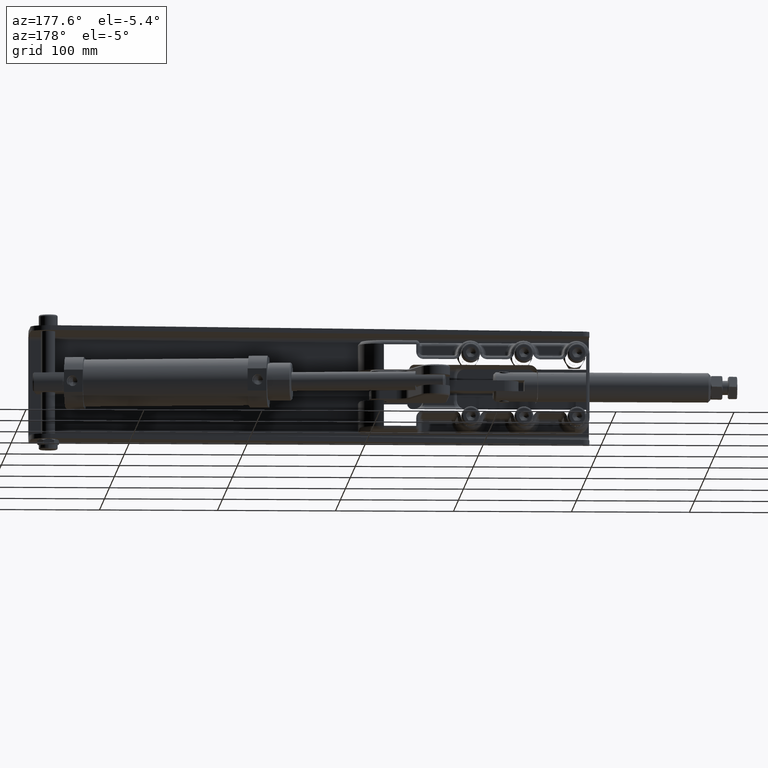
[diagram: clean part render]
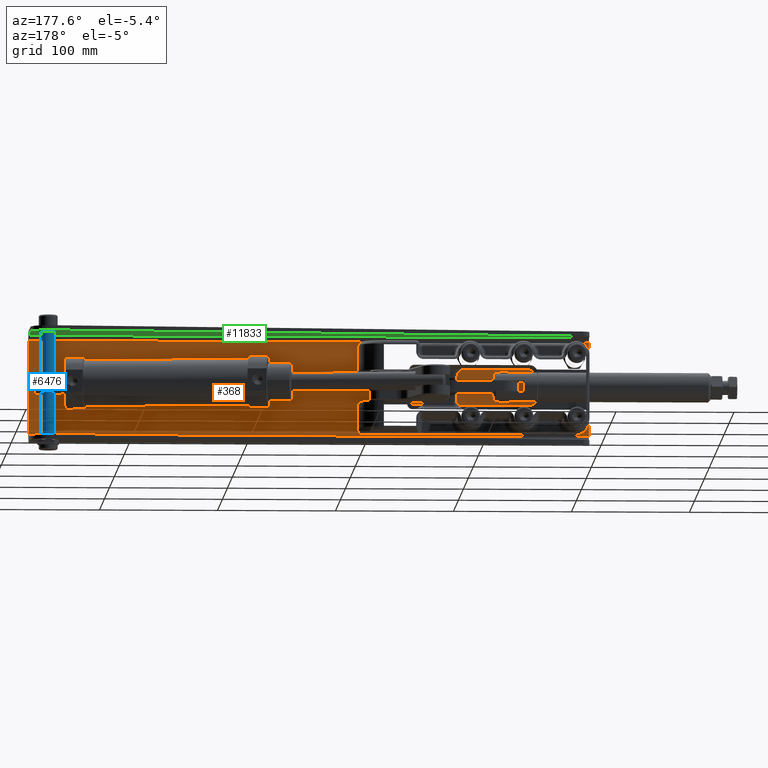
[diagram: same view with three faces highlighted in distinct colors, each labeled with its STEP entity id]
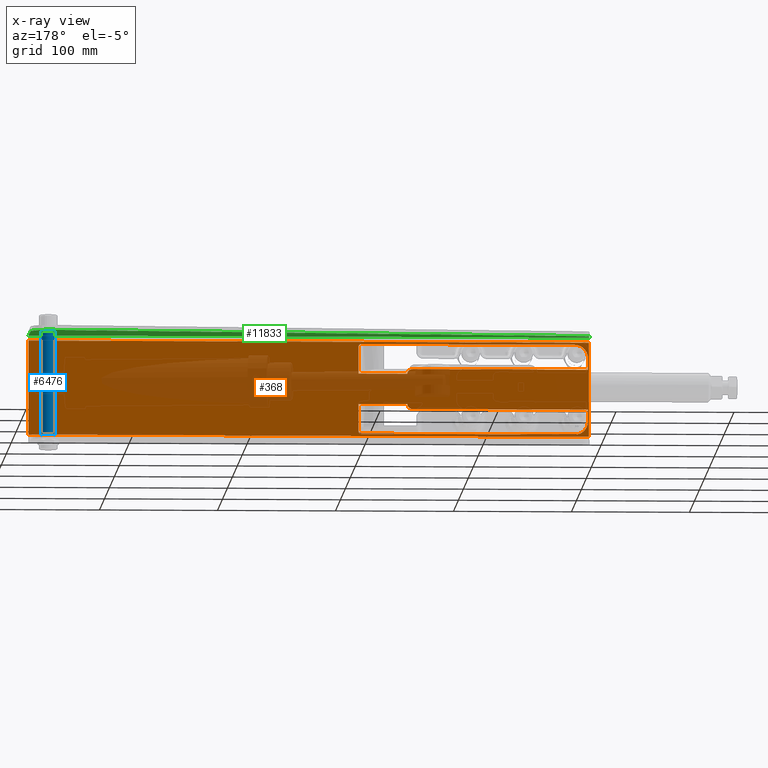
[diagram: x-ray of the same camera — body ghosted, the three highlighted faces saturated]
A machine part, auxiliary view with three faces highlighted in distinct colors.
The next image is the same camera in x-ray (body ghosted, the three faces saturated) — at least one of them is partly hidden behind the body in this view.
Their STEP definitions:

[orange] entity #368 — the highlighted planar face has unit normal (0, 1, 0).
#305 = VECTOR ( 'NONE', #17551, 1000.000000000000000 ) ;
#368 = ADVANCED_FACE ( 'NONE', ( #49665, #37427, #5117 ), #57052, .T. ) ;
#819 = DIRECTION ( 'NONE',  ( -1.000000000000000000, 0.0000000000000000000, 0.0000000000000000000 ) ) ;
#988 = CARTESIAN_POINT ( 'NONE',  ( 97.15648183554718300, 1.000000000052972100, -13.00000000000000500 ) ) ;
#1127 = CARTESIAN_POINT ( 'NONE',  ( -97.15648183554718300, 1.000000000000000000, -17.00000000000000000 ) ) ;
#1220 = VERTEX_POINT ( 'NONE', #53520 ) ;
#1316 = LINE ( 'NONE', #44049, #36501 ) ;
#1428 = EDGE_CURVE ( 'NONE', #33184, #7530, #1316, .T. ) ;
#1732 = VECTOR ( 'NONE', #26704, 1000.000000000000000 ) ;
#1772 = VERTEX_POINT ( 'NONE', #9234 ) ;
#2210 = DIRECTION ( 'NONE',  ( 0.0000000000000000000, 1.000000000000000000, 0.0000000000000000000 ) ) ;
#2460 = VERTEX_POINT ( 'NONE', #35881 ) ;
#2669 = ORIENTED_EDGE ( 'NONE', *, *, #58497, .F. ) ;
#2800 = VECTOR ( 'NONE', #3045, 1000.000000000000000 ) ;
#2897 = CARTESIAN_POINT ( 'NONE',  ( 95.50911380968743500, 1.000000000000005600, -38.09714708386768900 ) ) ;
#3045 = DIRECTION ( 'NONE',  ( -0.0000000000000000000, -0.0000000000000000000, -1.000000000000000000 ) ) ;
#3447 = LINE ( 'NONE', #20933, #38658 ) ;
#4636 = CARTESIAN_POINT ( 'NONE',  ( 96.92988952901025400, 1.000000000000011100, 36.91200907036959900 ) ) ;
#4655 = CARTESIAN_POINT ( 'NONE',  ( -97.15648183549980400, 1.000000000000000000, 26.99999999697401900 ) ) ;
#4978 = CARTESIAN_POINT ( 'NONE',  ( 0.0000000000000000000, 1.000000000000000000, 17.00000000442779000 ) ) ;
#5007 = EDGE_CURVE ( 'NONE', #58495, #24732, #59117, .T. ) ;
#5078 = VERTEX_POINT ( 'NONE', #21565 ) ;
#5117 = FACE_BOUND ( 'NONE', #47254, .T. ) ;
#5470 = DIRECTION ( 'NONE',  ( -1.000000000000000000, -0.0000000000000000000, -0.0000000000000000000 ) ) ;
#6969 = LINE ( 'NONE', #46829, #42150 ) ;
#7297 = DIRECTION ( 'NONE',  ( 0.0000000000000000000, 0.0000000000000000000, 1.000000000000000000 ) ) ;
#7510 = CARTESIAN_POINT ( 'NONE',  ( 94.92041385941081400, 0.9999999999995815600, -38.15648183549979700 ) ) ;
#7530 = VERTEX_POINT ( 'NONE', #988 ) ;
#8219 = VERTEX_POINT ( 'NONE', #21411 ) ;
#9216 = CARTESIAN_POINT ( 'NONE',  ( 97.08488855584097600, 0.9999999999999947800, 36.50045569711313200 ) ) ;
#9234 = CARTESIAN_POINT ( 'NONE',  ( 97.15648183549980400, 1.000000000000000000, 13.00000000000000200 ) ) ;
#10176 = LINE ( 'NONE', #49391, #56226 ) ;
#11261 = ORIENTED_EDGE ( 'NONE', *, *, #22274, .F. ) ;
#11388 = VERTEX_POINT ( 'NONE', #28928 ) ;
#11451 = EDGE_CURVE ( 'NONE', #56258, #54721, #33849, .T. ) ;
#11861 = ORIENTED_EDGE ( 'NONE', *, *, #35633, .F. ) ;
#11885 = CARTESIAN_POINT ( 'NONE',  ( 97.04233286314365600, 1.000000000000001100, -36.64077336740563600 ) ) ;
#12089 = CARTESIAN_POINT ( 'NONE',  ( 97.15648183549980400, 1.000000000000006700, 35.92041385479770800 ) ) ;
#12202 = DIRECTION ( 'NONE',  ( 0.0000000000000000000, 0.0000000000000000000, -1.000000000000000000 ) ) ;
#12208 = EDGE_CURVE ( 'NONE', #39655, #1220, #44564, .T. ) ;
#12588 = CARTESIAN_POINT ( 'NONE',  ( 97.15648183559454800, 1.000000000105943900, -24.46020692900000200 ) ) ;
#13136 = CARTESIAN_POINT ( 'NONE',  ( 377.0000000000000000, 1.000000000000000000, 0.0000000000000000000 ) ) ;
#13388 = CARTESIAN_POINT ( 'NONE',  ( 95.06801083798605100, 0.9999999999999983300, 38.15648183225170000 ) ) ;
#13802 = CARTESIAN_POINT ( 'NONE',  ( 97.15648183565709000, 0.9999999999999995600, 36.06801079026740100 ) ) ;
#14151 = CARTESIAN_POINT ( 'NONE',  ( 97.15648183549980400, 1.000000000000000000, -35.92041386193097500 ) ) ;
#14579 = LINE ( 'NONE', #4978, #33302 ) ;
#14612 = ORIENTED_EDGE ( 'NONE', *, *, #19471, .F. ) ;
#14688 =( BOUNDED_CURVE ( )  B_SPLINE_CURVE ( 3, ( #4655, #32175, #18482, #50624 ),
 .UNSPECIFIED., .F., .F. ) 
 B_SPLINE_CURVE_WITH_KNOTS ( ( 4, 4 ),
 ( 7.419066370004565100E-013, 0.01742820191794432900 ),
 .UNSPECIFIED. ) 
 CURVE ( )  GEOMETRIC_REPRESENTATION_ITEM ( )  RATIONAL_B_SPLINE_CURVE ( ( 0.9999999999999996700, 0.8047378541243647200, 0.8047378541243647200, 0.9999999999999996700 ) ) 
 REPRESENTATION_ITEM ( '' )  );
#14912 = CARTESIAN_POINT ( 'NONE',  ( 55.97213595499979300, 1.000000000000000900, -13.00000000000000200 ) ) ;
#15231 = VECTOR ( 'NONE', #819, 1000.000000000000000 ) ;
#15436 = CARTESIAN_POINT ( 'NONE',  ( -98.00000000000000000, 1.000000000000031300, -40.00000000000003600 ) ) ;
#16345 = CARTESIAN_POINT ( 'NONE',  ( 97.14200290983234300, 1.000000000000007500, -36.21323035705479000 ) ) ;
#16520 = DIRECTION ( 'NONE',  ( 1.000000000000000000, 0.0000000000000000000, 0.0000000000000000000 ) ) ;
#16530 = CARTESIAN_POINT ( 'NONE',  ( 96.86161125220306200, 1.000000000000002900, -37.03982447843932100 ) ) ;
#17551 = DIRECTION ( 'NONE',  ( -1.000000000000000000, 0.0000000000000000000, 0.0000000000000000000 ) ) ;
#17580 = CARTESIAN_POINT ( 'NONE',  ( 94.92041385941081400, 0.9999999999995815600, -38.15648183549979700 ) ) ;
#17693 = ORIENTED_EDGE ( 'NONE', *, *, #5007, .F. ) ;
#18482 = CARTESIAN_POINT ( 'NONE',  ( -92.53531575099997000, 1.000000000000005300, 38.15648183500000100 ) ) ;
#18747 = CARTESIAN_POINT ( 'NONE',  ( -86.00000000000000000, 1.000000000000000000, -38.15648183499999400 ) ) ;
#19076 = CARTESIAN_POINT ( 'NONE',  ( 55.97213595499979300, 1.000000000000000200, 13.00000000000000200 ) ) ;
#19141 = AXIS2_PLACEMENT_3D ( 'NONE', #29740, #2210, #34344 ) ;
#19471 = EDGE_CURVE ( 'NONE', #1220, #11388, #14688, .T. ) ;
#19635 = LINE ( 'NONE', #13136, #53357 ) ;
#20312 = CARTESIAN_POINT ( 'NONE',  ( 51.50000000000000700, 1.000000000000000000, 12.50000000000000000 ) ) ;
#20933 = CARTESIAN_POINT ( 'NONE',  ( 77.07211974000000500, 1.000000000000000000, 13.00000000000000200 ) ) ;
#20981 = EDGE_CURVE ( 'NONE', #57228, #54721, #49690, .T. ) ;
#21186 = CARTESIAN_POINT ( 'NONE',  ( 96.60517291495412500, 1.000000000000008400, -37.39785854648362600 ) ) ;
#21368 = VERTEX_POINT ( 'NONE', #33288 ) ;
#21411 = CARTESIAN_POINT ( 'NONE',  ( -98.00000000000000000, 0.9999999999999756900, 39.99999999999981500 ) ) ;
#21565 = CARTESIAN_POINT ( 'NONE',  ( 377.0000000000000000, 1.000000000000031300, -40.00000000000003600 ) ) ;
#21782 = ORIENTED_EDGE ( 'NONE', *, *, #31268, .T. ) ;
#22036 = DIRECTION ( 'NONE',  ( 0.0000000000000000000, -1.000000000000000000, -0.0000000000000000000 ) ) ;
#22138 = VECTOR ( 'NONE', #52344, 1000.000000000000000 ) ;
#22274 = EDGE_CURVE ( 'NONE', #30712, #1772, #51661, .T. ) ;
#22692 = CARTESIAN_POINT ( 'NONE',  ( 95.21362989936697800, 1.000000000000000700, 38.14200992127401000 ) ) ;
#23040 = ORIENTED_EDGE ( 'NONE', *, *, #48404, .T. ) ;
#23953 = VERTEX_POINT ( 'NONE', #19076 ) ;
#24732 = VERTEX_POINT ( 'NONE', #17580 ) ;
#24757 = CARTESIAN_POINT ( 'NONE',  ( -97.15648183549980400, 0.9999999999999688000, -27.00000000000000400 ) ) ;
#24795 = LINE ( 'NONE', #45083, #305 ) ;
#24892 = DIRECTION ( 'NONE',  ( 1.541976423090494800E-015, 0.0000000000000000000, 1.000000000000000000 ) ) ;
#24895 = EDGE_LOOP ( 'NONE', ( #41441, #14612, #33917, #2669, #47945, #11861, #11261, #32503 ) ) ;
#25102 = CARTESIAN_POINT ( 'NONE',  ( -92.53531575099994200, 0.9999999999999950000, -38.15648183499999400 ) ) ;
#25346 = EDGE_CURVE ( 'NONE', #5078, #52100, #51925, .T. ) ;
#25540 = DIRECTION ( 'NONE',  ( -1.000000000000000000, -0.0000000000000000000, -0.0000000000000000000 ) ) ;
#25791 = CARTESIAN_POINT ( 'NONE',  ( 96.28660206518843300, 1.000000000000097000, -37.69667904823703000 ) ) ;
#26704 = DIRECTION ( 'NONE',  ( 0.0000000000000000000, 0.0000000000000000000, 1.000000000000000000 ) ) ;
#27316 = CARTESIAN_POINT ( 'NONE',  ( 95.64303468280338900, 0.9999999999999883400, 38.04150713624743900 ) ) ;
#27361 = EDGE_CURVE ( 'NONE', #52100, #8219, #58833, .T. ) ;
#28035 = CARTESIAN_POINT ( 'NONE',  ( -97.15648183524989200, 1.000000000000000000, 17.00000000000000000 ) ) ;
#28286 = VERTEX_POINT ( 'NONE', #42014 ) ;
#28445 = EDGE_LOOP ( 'NONE', ( #45423, #50820, #38679, #34812 ) ) ;
#28928 = CARTESIAN_POINT ( 'NONE',  ( -86.00000000000000000, 1.000000000000000000, 38.15648183549979700 ) ) ;
#29397 = EDGE_CURVE ( 'NONE', #21368, #8219, #24795, .T. ) ;
#29655 = ORIENTED_EDGE ( 'NONE', *, *, #20981, .T. ) ;
#29732 = CARTESIAN_POINT ( 'NONE',  ( -97.15648183549980400, 0.9999999999999688000, -27.00000000000000400 ) ) ;
#29740 = CARTESIAN_POINT ( 'NONE',  ( -98.00000000000000000, 1.000000000000000000, -39.92500000000000400 ) ) ;
#30222 = CARTESIAN_POINT ( 'NONE',  ( 97.15648183473898300, 1.000000000000002000, -36.06805501278262900 ) ) ;
#30421 = CARTESIAN_POINT ( 'NONE',  ( 95.91236799640034900, 1.000000000000005600, -37.92969501779874300 ) ) ;
#30712 = VERTEX_POINT ( 'NONE', #12089 ) ;
#31268 = EDGE_CURVE ( 'NONE', #2460, #57228, #10176, .T. ) ;
#31663 = DIRECTION ( 'NONE',  ( -0.0000000000000000000, -0.0000000000000000000, -1.000000000000000000 ) ) ;
#31932 = CARTESIAN_POINT ( 'NONE',  ( 96.29584852246127000, 1.000000000000004700, 37.70727364196978500 ) ) ;
#32155 = CARTESIAN_POINT ( 'NONE',  ( 96.86131508610452600, 1.000000000000078400, 37.04043774668845400 ) ) ;
#32175 = CARTESIAN_POINT ( 'NONE',  ( -97.15648183499998000, 1.000000000000005300, 33.53531575100000600 ) ) ;
#32365 = VECTOR ( 'NONE', #7297, 1000.000000000000000 ) ;
#32503 = ORIENTED_EDGE ( 'NONE', *, *, #55069, .F. ) ;
#32804 = AXIS2_PLACEMENT_3D ( 'NONE', #20312, #52417, #24892 ) ;
#33184 = VERTEX_POINT ( 'NONE', #14912 ) ;
#33288 = CARTESIAN_POINT ( 'NONE',  ( 377.0000000000000000, 0.9999999999999756900, 39.99999999999981500 ) ) ;
#33302 = VECTOR ( 'NONE', #41703, 1000.000000000000000 ) ;
#33849 =( BOUNDED_CURVE ( )  B_SPLINE_CURVE ( 3, ( #47595, #25102, #57229, #29732 ),
 .UNSPECIFIED., .F., .F. ) 
 B_SPLINE_CURVE_WITH_KNOTS ( ( 4, 4 ),
 ( 3.277628149261428300E-011, 0.01742820194213338600 ),
 .UNSPECIFIED. ) 
 CURVE ( )  GEOMETRIC_REPRESENTATION_ITEM ( )  RATIONAL_B_SPLINE_CURVE ( ( 1.000000000000000700, 0.8047378541243653800, 0.8047378541243653800, 1.000000000000000700 ) ) 
 REPRESENTATION_ITEM ( '' )  );
#33917 = ORIENTED_EDGE ( 'NONE', *, *, #12208, .F. ) ;
#34344 = DIRECTION ( 'NONE',  ( 0.0000000000000000000, 0.0000000000000000000, 1.000000000000000000 ) ) ;
#34812 = ORIENTED_EDGE ( 'NONE', *, *, #29397, .F. ) ;
#34814 = CARTESIAN_POINT ( 'NONE',  ( 97.15648183549980400, 1.000000000000000000, -35.92041386193097500 ) ) ;
#35004 = CARTESIAN_POINT ( 'NONE',  ( 95.21569619309829600, 1.000000000000040400, -38.15648182989063000 ) ) ;
#35633 = EDGE_CURVE ( 'NONE', #1772, #23953, #3447, .T. ) ;
#35881 = CARTESIAN_POINT ( 'NONE',  ( 51.49999999907704100, 1.000000000000000000, -17.00000000000000000 ) ) ;
#36180 = ORIENTED_EDGE ( 'NONE', *, *, #54649, .F. ) ;
#36501 = VECTOR ( 'NONE', #16520, 1000.000000000000000 ) ;
#36724 = CARTESIAN_POINT ( 'NONE',  ( 97.04163012862112200, 1.000000000000011300, 36.64269847710361500 ) ) ;
#36963 = AXIS2_PLACEMENT_3D ( 'NONE', #49544, #22036, #54164 ) ;
#37260 = CIRCLE ( 'NONE', #36963, 4.500000000000000900 ) ;
#37427 = FACE_BOUND ( 'NONE', #24895, .T. ) ;
#37448 = VECTOR ( 'NONE', #12202, 1000.000000000000000 ) ;
#37718 = VERTEX_POINT ( 'NONE', #50580 ) ;
#38628 = ORIENTED_EDGE ( 'NONE', *, *, #1428, .F. ) ;
#38658 = VECTOR ( 'NONE', #25540, 1000.000000000000000 ) ;
#38679 = ORIENTED_EDGE ( 'NONE', *, *, #27361, .T. ) ;
#39442 = CARTESIAN_POINT ( 'NONE',  ( 97.08527175002358000, 1.000000000000007800, -36.49885117067809400 ) ) ;
#39655 = VERTEX_POINT ( 'NONE', #28035 ) ;
#41362 = CARTESIAN_POINT ( 'NONE',  ( 97.14201016047300600, 0.9999999999999947800, 36.21351643687845000 ) ) ;
#41441 = ORIENTED_EDGE ( 'NONE', *, *, #51196, .F. ) ;
#41703 = DIRECTION ( 'NONE',  ( -1.000000000000000000, -0.0000000000000000000, -0.0000000000000000000 ) ) ;
#41894 = CARTESIAN_POINT ( 'NONE',  ( 96.60450153510117800, 1.000000000000004400, 37.39859544201210900 ) ) ;
#42014 = CARTESIAN_POINT ( 'NONE',  ( 51.50000000000000700, 1.000000000000000000, 17.00000000000000000 ) ) ;
#42150 = VECTOR ( 'NONE', #5470, 1000.000000000000000 ) ;
#42482 = CIRCLE ( 'NONE', #32804, 4.500000000000000900 ) ;
#42832 = CARTESIAN_POINT ( 'NONE',  ( -97.15648183499998000, 1.000000000000000000, 25.57824091749999300 ) ) ;
#42954 = CARTESIAN_POINT ( 'NONE',  ( -98.00000000000000000, 1.000000000000000000, 0.0000000000000000000 ) ) ;
#44049 = CARTESIAN_POINT ( 'NONE',  ( 77.07211974000000500, 1.000000000000000000, -13.00000000000000200 ) ) ;
#44060 = CARTESIAN_POINT ( 'NONE',  ( 96.93021894739284500, 1.000000000000000400, -36.91144442758941600 ) ) ;
#44131 = EDGE_CURVE ( 'NONE', #21368, #5078, #19635, .T. ) ;
#44360 = CARTESIAN_POINT ( 'NONE',  ( -97.15648183559454800, 1.000000000105943900, 0.0000000000000000000 ) ) ;
#44564 = LINE ( 'NONE', #42832, #32365 ) ;
#45083 = CARTESIAN_POINT ( 'NONE',  ( 377.0000000000000000, 0.9999999999999756900, 39.99999999999981500 ) ) ;
#45423 = ORIENTED_EDGE ( 'NONE', *, *, #44131, .T. ) ;
#45566 = CARTESIAN_POINT ( 'NONE',  ( 94.92041385800000300, 0.9999999999999974500, 38.15648183497870600 ) ) ;
#45893 = B_SPLINE_CURVE_WITH_KNOTS ( 'NONE', 3,
 ( #45566, #13388, #22692, #54803, #27316, #59436, #31932, #41894, #59656, #32155, #4636, #36724, #9216, #41362, #13802, #45987 ),
 .UNSPECIFIED., .F., .F.,
 ( 4, 2, 2, 2, 2, 2, 2, 4 ),
 ( 0.0000000000000000000, 0.0004387124799968195400, 0.0008774249599936390700, 0.001754849919987239500, 0.002193562399984054200, 0.002632274879980869400, 0.003070987359977683800, 0.003509699839974498600 ),
 .UNSPECIFIED. ) ;
#45987 = CARTESIAN_POINT ( 'NONE',  ( 97.15648183549980400, 1.000000000000006700, 35.92041385479770800 ) ) ;
#46626 = VECTOR ( 'NONE', #56828, 1000.000000000000000 ) ;
#46829 = CARTESIAN_POINT ( 'NONE',  ( 0.0000000000000000000, 1.000000000000000000, -38.15648183499999400 ) ) ;
#47254 = EDGE_LOOP ( 'NONE', ( #17693, #23040, #38628, #58701, #21782, #29655, #48418, #36180 ) ) ;
#47595 = CARTESIAN_POINT ( 'NONE',  ( -86.00000000000000000, 1.000000000000000000, -38.15648183499999400 ) ) ;
#47945 = ORIENTED_EDGE ( 'NONE', *, *, #52137, .F. ) ;
#48404 = EDGE_CURVE ( 'NONE', #58495, #7530, #50579, .T. ) ;
#48418 = ORIENTED_EDGE ( 'NONE', *, *, #11451, .F. ) ;
#48689 = CARTESIAN_POINT ( 'NONE',  ( 96.69952324849883500, 1.000000000000002900, -37.28280045404820700 ) ) ;
#49391 = CARTESIAN_POINT ( 'NONE',  ( -23.57216701400000100, 1.000000000000000000, -17.00000000000000000 ) ) ;
#49544 = CARTESIAN_POINT ( 'NONE',  ( 51.50000000000000700, 1.000000000000000000, -12.50000000000000000 ) ) ;
#49665 = FACE_OUTER_BOUND ( 'NONE', #28445, .T. ) ;
#49690 = LINE ( 'NONE', #44360, #37448 ) ;
#50579 = LINE ( 'NONE', #12588, #1732 ) ;
#50580 = CARTESIAN_POINT ( 'NONE',  ( 94.92041385800000300, 0.9999999999999974500, 38.15648183497870600 ) ) ;
#50624 = CARTESIAN_POINT ( 'NONE',  ( -86.00000000000000000, 1.000000000000000000, 38.15648183549979700 ) ) ;
#50766 = EDGE_CURVE ( 'NONE', #2460, #33184, #37260, .T. ) ;
#50820 = ORIENTED_EDGE ( 'NONE', *, *, #25346, .T. ) ;
#51196 = EDGE_CURVE ( 'NONE', #11388, #37718, #58775, .T. ) ;
#51255 = CARTESIAN_POINT ( 'NONE',  ( 377.0000000000000000, 1.000000000000031300, -40.00000000000003600 ) ) ;
#51661 = LINE ( 'NONE', #58059, #2800 ) ;
#51925 = LINE ( 'NONE', #51255, #15231 ) ;
#52100 = VERTEX_POINT ( 'NONE', #15436 ) ;
#52137 = EDGE_CURVE ( 'NONE', #23953, #28286, #42482, .T. ) ;
#52344 = DIRECTION ( 'NONE',  ( 1.000000000000000000, 0.0000000000000000000, 0.0000000000000000000 ) ) ;
#52417 = DIRECTION ( 'NONE',  ( 0.0000000000000000000, -1.000000000000000000, -0.0000000000000000000 ) ) ;
#53280 = CARTESIAN_POINT ( 'NONE',  ( 96.39906279795752700, 1.000000000000008700, -37.60411608818385800 ) ) ;
#53357 = VECTOR ( 'NONE', #31663, 1000.000000000000000 ) ;
#53520 = CARTESIAN_POINT ( 'NONE',  ( -97.15648183549980400, 1.000000000000000000, 26.99999999697401900 ) ) ;
#54000 = DIRECTION ( 'NONE',  ( -1.000000000000000000, 0.0000000000000000000, 0.0000000000000000000 ) ) ;
#54164 = DIRECTION ( 'NONE',  ( 0.0000000000000000000, 0.0000000000000000000, 1.000000000000000000 ) ) ;
#54649 = EDGE_CURVE ( 'NONE', #24732, #56258, #6969, .T. ) ;
#54721 = VERTEX_POINT ( 'NONE', #24757 ) ;
#54803 = CARTESIAN_POINT ( 'NONE',  ( 95.50099914705536700, 1.000000000000000700, 38.08475797052488300 ) ) ;
#55069 = EDGE_CURVE ( 'NONE', #37718, #30712, #45893, .T. ) ;
#56226 = VECTOR ( 'NONE', #54000, 1000.000000000000000 ) ;
#56258 = VERTEX_POINT ( 'NONE', #18747 ) ;
#56828 = DIRECTION ( 'NONE',  ( 0.0000000000000000000, 0.0000000000000000000, 1.000000000000000000 ) ) ;
#56947 = CARTESIAN_POINT ( 'NONE',  ( 0.0000000000000000000, 1.000000000000000000, 38.15648183499999400 ) ) ;
#57052 = PLANE ( 'NONE',  #19141 ) ;
#57228 = VERTEX_POINT ( 'NONE', #1127 ) ;
#57229 = CARTESIAN_POINT ( 'NONE',  ( -97.15648183499995100, 0.9999999999999950000, -33.53531575099999200 ) ) ;
#57917 = CARTESIAN_POINT ( 'NONE',  ( 96.04242631311326800, 1.000000000000096800, -37.86017577486650500 ) ) ;
#58059 = CARTESIAN_POINT ( 'NONE',  ( 97.15648183499998000, 1.000000000000000000, 25.57824091749999300 ) ) ;
#58495 = VERTEX_POINT ( 'NONE', #14151 ) ;
#58497 = EDGE_CURVE ( 'NONE', #28286, #39655, #14579, .T. ) ;
#58701 = ORIENTED_EDGE ( 'NONE', *, *, #50766, .F. ) ;
#58775 = LINE ( 'NONE', #56947, #22138 ) ;
#58833 = LINE ( 'NONE', #42954, #46626 ) ;
#59117 = B_SPLINE_CURVE_WITH_KNOTS ( 'NONE', 3,
 ( #34814, #30222, #16345, #39442, #11885, #44060, #16530, #48689, #21186, #53280, #25791, #57917, #30421, #2897, #35004, #7510 ),
 .UNSPECIFIED., .F., .F.,
 ( 4, 2, 2, 2, 2, 2, 2, 4 ),
 ( 0.0000000000000000000, 0.0004366367936507340700, 0.0008732735873014681300, 0.001309910380952202400, 0.001746547174602936300, 0.002183183968253670400, 0.002619820761904404700, 0.003493094349205833900 ),
 .UNSPECIFIED. ) ;
#59436 = CARTESIAN_POINT ( 'NONE',  ( 96.04664089681084200, 0.9999999999999885600, 37.87399591920307500 ) ) ;
#59656 = CARTESIAN_POINT ( 'NONE',  ( 96.69822245687922200, 1.000000000000078800, 37.28457941763926400 ) ) ;

[blue] entity #6476 — the highlighted cylindrical surface (edge-blend (fillet) strip) has radius 6 mm, axis along (-0, -0, 1).
#909 = DIRECTION ( 'NONE',  ( -0.5286899147997813400, 0.8488150410949372200, 0.0000000000000000000 ) ) ;
#2403 = ORIENTED_EDGE ( 'NONE', *, *, #26215, .F. ) ;
#3107 = CARTESIAN_POINT ( 'NONE',  ( 367.5296341654822100, 38.65904946886768600, -43.80000000000001800 ) ) ;
#4002 = CARTESIAN_POINT ( 'NONE',  ( 367.5296341654822100, 38.65904946886768600, 43.99999999999996400 ) ) ;
#5837 = EDGE_CURVE ( 'NONE', #46670, #59635, #52192, .T. ) ;
#6476 = ADVANCED_FACE ( 'NONE', ( #44835 ), #40527, .T. ) ;
#7027 = CARTESIAN_POINT ( 'NONE',  ( 367.5296341654822100, 38.65904946886767800, 8.199999999999963800 ) ) ;
#9021 = CARTESIAN_POINT ( 'NONE',  ( 356.4703658345177400, 43.31657928452392500, -43.80000000000001800 ) ) ;
#11585 = DIRECTION ( 'NONE',  ( -6.647983498905033500E-034, -1.387778780781446600E-017, 1.000000000000000000 ) ) ;
#18906 = ORIENTED_EDGE ( 'NONE', *, *, #38727, .T. ) ;
#20555 = ORIENTED_EDGE ( 'NONE', *, *, #5837, .T. ) ;
#22753 = DIRECTION ( 'NONE',  ( -6.647983498905033500E-034, -1.387778780781446600E-017, 1.000000000000000000 ) ) ;
#22933 = CARTESIAN_POINT ( 'NONE',  ( 362.0000000000000000, 40.98781437669580900, 8.199999999999963800 ) ) ;
#23395 = VECTOR ( 'NONE', #11585, 1000.000000000000000 ) ;
#24100 = EDGE_CURVE ( 'NONE', #27962, #59635, #47827, .T. ) ;
#24172 = AXIS2_PLACEMENT_3D ( 'NONE', #53150, #25650, #57777 ) ;
#25650 = DIRECTION ( 'NONE',  ( 6.647983498905032600E-034, 1.387778780781446600E-017, -1.000000000000000000 ) ) ;
#26215 = EDGE_CURVE ( 'NONE', #33550, #27962, #31630, .T. ) ;
#26550 = AXIS2_PLACEMENT_3D ( 'NONE', #22933, #55051, #46001 ) ;
#27962 = VERTEX_POINT ( 'NONE', #3107 ) ;
#28450 = DIRECTION ( 'NONE',  ( 6.553042144052812500E-033, 1.387778780781447500E-017, -1.000000000000000000 ) ) ;
#30445 = LINE ( 'NONE', #41194, #54832 ) ;
#31630 = CIRCLE ( 'NONE', #34148, 5.999999999999997300 ) ;
#33550 = VERTEX_POINT ( 'NONE', #9021 ) ;
#34148 = AXIS2_PLACEMENT_3D ( 'NONE', #55979, #28450, #909 ) ;
#35735 = CARTESIAN_POINT ( 'NONE',  ( 356.4703658345177400, 43.31657928452393200, 43.99999999999996400 ) ) ;
#38727 = EDGE_CURVE ( 'NONE', #33550, #46670, #30445, .T. ) ;
#40527 = CYLINDRICAL_SURFACE ( 'NONE', #26550, 6.000000000000022200 ) ;
#41194 = CARTESIAN_POINT ( 'NONE',  ( 356.4703658345177400, 43.31657928452393900, 8.199999999999963800 ) ) ;
#43041 = ORIENTED_EDGE ( 'NONE', *, *, #24100, .F. ) ;
#44835 = FACE_OUTER_BOUND ( 'NONE', #52912, .T. ) ;
#46001 = DIRECTION ( 'NONE',  ( 0.9216056942470373100, -0.3881274846380201000, 0.0000000000000000000 ) ) ;
#46670 = VERTEX_POINT ( 'NONE', #35735 ) ;
#47827 = LINE ( 'NONE', #7027, #23395 ) ;
#52192 = CIRCLE ( 'NONE', #24172, 6.000000000000022200 ) ;
#52912 = EDGE_LOOP ( 'NONE', ( #2403, #18906, #20555, #43041 ) ) ;
#53150 = CARTESIAN_POINT ( 'NONE',  ( 362.0000000000000000, 40.98781437669580900, 43.99999999999996400 ) ) ;
#54832 = VECTOR ( 'NONE', #22753, 1000.000000000000000 ) ;
#55051 = DIRECTION ( 'NONE',  ( -6.647983498905033500E-034, -1.387778780781446600E-017, 1.000000000000000000 ) ) ;
#55979 = CARTESIAN_POINT ( 'NONE',  ( 362.0000000000000000, 40.98781437669580200, -43.80000000000001800 ) ) ;
#57777 = DIRECTION ( 'NONE',  ( -0.9216056942470373100, 0.3881274846380201000, 0.0000000000000000000 ) ) ;
#59635 = VERTEX_POINT ( 'NONE', #4002 ) ;

[green] entity #11833 — the highlighted planar face has unit normal (0, 0, -1).
#1412 = AXIS2_PLACEMENT_3D ( 'NONE', #5667, #37796, #10257 ) ;
#1668 = ORIENTED_EDGE ( 'NONE', *, *, #38215, .F. ) ;
#1791 = ORIENTED_EDGE ( 'NONE', *, *, #6868, .T. ) ;
#2571 = AXIS2_PLACEMENT_3D ( 'NONE', #5609, #37736, #10200 ) ;
#3085 = VERTEX_POINT ( 'NONE', #16315 ) ;
#4002 = CARTESIAN_POINT ( 'NONE',  ( 367.5296341654822100, 38.65904946886768600, 43.99999999999996400 ) ) ;
#5095 = DIRECTION ( 'NONE',  ( -1.000000000000000000, 0.0000000000000000000, 0.0000000000000000000 ) ) ;
#5609 = CARTESIAN_POINT ( 'NONE',  ( -92.00000000000002800, 11.48781437669576100, 43.99999999999984400 ) ) ;
#5667 = CARTESIAN_POINT ( 'NONE',  ( 362.0000000000000000, 40.98781437669580900, 43.99999999999996400 ) ) ;
#5837 = EDGE_CURVE ( 'NONE', #46670, #59635, #52192, .T. ) ;
#6868 = EDGE_CURVE ( 'NONE', #24272, #41237, #21814, .T. ) ;
#7294 = VECTOR ( 'NONE', #30501, 1000.000000000000000 ) ;
#8850 = EDGE_CURVE ( 'NONE', #41237, #24509, #38583, .T. ) ;
#10200 = DIRECTION ( 'NONE',  ( 0.0000000000000000000, 1.000000000000000000, 3.469446951953617300E-015 ) ) ;
#10257 = DIRECTION ( 'NONE',  ( -0.9216056942470373100, 0.3881274846380201000, 0.0000000000000000000 ) ) ;
#10391 = LINE ( 'NONE', #18156, #31983 ) ;
#10834 = FACE_BOUND ( 'NONE', #31131, .T. ) ;
#10870 = EDGE_CURVE ( 'NONE', #47250, #30595, #46239, .T. ) ;
#11833 = ADVANCED_FACE ( 'NONE', ( #10834, #46060 ), #29660, .T. ) ;
#15173 = EDGE_CURVE ( 'NONE', #24509, #47250, #56178, .T. ) ;
#15209 = CARTESIAN_POINT ( 'NONE',  ( 376.9999999999999400, 40.98781437669580900, 44.00000000000002800 ) ) ;
#16315 = CARTESIAN_POINT ( 'NONE',  ( -98.00000000000002800, 11.48781437669576100, 43.99999999999985800 ) ) ;
#16588 = DIRECTION ( 'NONE',  ( 0.9964176265405272300, 0.08456898674657613300, 3.364123217630964900E-016 ) ) ;
#18156 = CARTESIAN_POINT ( 'NONE',  ( -98.00000000000000000, 57.33000000000001300, 44.00000000000002800 ) ) ;
#19082 = DIRECTION ( 'NONE',  ( 0.0000000000000000000, 3.977963254676413900E-015, -1.000000000000000000 ) ) ;
#19263 = ORIENTED_EDGE ( 'NONE', *, *, #5837, .F. ) ;
#19328 = EDGE_LOOP ( 'NONE', ( #1668, #30114, #1791, #22096, #23242, #33123 ) ) ;
#20643 = DIRECTION ( 'NONE',  ( 0.0000000000000000000, 3.977963254676413900E-015, -1.000000000000000000 ) ) ;
#20690 = AXIS2_PLACEMENT_3D ( 'NONE', #48125, #20643, #52738 ) ;
#21289 = AXIS2_PLACEMENT_3D ( 'NONE', #46601, #19082, #51204 ) ;
#21814 = LINE ( 'NONE', #48742, #44775 ) ;
#22096 = ORIENTED_EDGE ( 'NONE', *, *, #8850, .T. ) ;
#23242 = ORIENTED_EDGE ( 'NONE', *, *, #15173, .T. ) ;
#24172 = AXIS2_PLACEMENT_3D ( 'NONE', #53150, #25650, #57777 ) ;
#24272 = VERTEX_POINT ( 'NONE', #40762 ) ;
#24509 = VERTEX_POINT ( 'NONE', #15209 ) ;
#25650 = DIRECTION ( 'NONE',  ( 6.647983498905032600E-034, 1.387778780781446600E-017, -1.000000000000000000 ) ) ;
#25661 = EDGE_CURVE ( 'NONE', #3085, #24272, #58293, .T. ) ;
#26068 = ORIENTED_EDGE ( 'NONE', *, *, #54648, .F. ) ;
#27996 = CARTESIAN_POINT ( 'NONE',  ( 377.0000000000000000, 4.999999999999979600, 43.99999999999981500 ) ) ;
#29660 = PLANE ( 'NONE',  #20690 ) ;
#30114 = ORIENTED_EDGE ( 'NONE', *, *, #25661, .T. ) ;
#30501 = DIRECTION ( 'NONE',  ( 0.0000000000000000000, -1.000000000000000000, -3.977963254676413100E-015 ) ) ;
#30595 = VERTEX_POINT ( 'NONE', #43862 ) ;
#31131 = EDGE_LOOP ( 'NONE', ( #26068, #19263 ) ) ;
#31394 = CIRCLE ( 'NONE', #1412, 6.000000000000022200 ) ;
#31983 = VECTOR ( 'NONE', #54929, 1000.000000000000000 ) ;
#33123 = ORIENTED_EDGE ( 'NONE', *, *, #10870, .T. ) ;
#34038 = VECTOR ( 'NONE', #5095, 1000.000000000000000 ) ;
#35735 = CARTESIAN_POINT ( 'NONE',  ( 356.4703658345177400, 43.31657928452393200, 43.99999999999996400 ) ) ;
#37736 = DIRECTION ( 'NONE',  ( 0.0000000000000000000, 3.977963254676413900E-015, -1.000000000000000000 ) ) ;
#37796 = DIRECTION ( 'NONE',  ( 6.647983498905032600E-034, 1.387778780781446600E-017, -1.000000000000000000 ) ) ;
#38215 = EDGE_CURVE ( 'NONE', #3085, #30595, #10391, .T. ) ;
#38583 = CIRCLE ( 'NONE', #21289, 14.99999999999995000 ) ;
#40762 = CARTESIAN_POINT ( 'NONE',  ( -92.50741392047950700, 17.46632013593891800, 43.99999999999994300 ) ) ;
#41237 = VERTEX_POINT ( 'NONE', #53820 ) ;
#43862 = CARTESIAN_POINT ( 'NONE',  ( -98.00000000000000000, 4.999999999999979600, 43.99999999999981500 ) ) ;
#44775 = VECTOR ( 'NONE', #16588, 1000.000000000000000 ) ;
#46060 = FACE_OUTER_BOUND ( 'NONE', #19328, .T. ) ;
#46239 = LINE ( 'NONE', #27996, #34038 ) ;
#46601 = CARTESIAN_POINT ( 'NONE',  ( 362.0000000000000000, 40.98781437669580900, 43.99999999999995700 ) ) ;
#46670 = VERTEX_POINT ( 'NONE', #35735 ) ;
#47250 = VERTEX_POINT ( 'NONE', #58357 ) ;
#48125 = CARTESIAN_POINT ( 'NONE',  ( 377.0000000000000000, 57.33000000000001300, 44.00000000000002800 ) ) ;
#48742 = CARTESIAN_POINT ( 'NONE',  ( 377.0012775845334000, 57.31494710889298700, 44.00000000000002800 ) ) ;
#51204 = DIRECTION ( 'NONE',  ( 0.0000000000000000000, 1.000000000000000000, 4.163336342344351200E-015 ) ) ;
#52192 = CIRCLE ( 'NONE', #24172, 6.000000000000022200 ) ;
#52738 = DIRECTION ( 'NONE',  ( 0.0000000000000000000, 1.000000000000000000, 3.977963254676413900E-015 ) ) ;
#53150 = CARTESIAN_POINT ( 'NONE',  ( 362.0000000000000000, 40.98781437669580900, 43.99999999999996400 ) ) ;
#53820 = CARTESIAN_POINT ( 'NONE',  ( 360.7314651988013500, 55.93407877480365900, 44.00000000000002800 ) ) ;
#54648 = EDGE_CURVE ( 'NONE', #59635, #46670, #31394, .T. ) ;
#54929 = DIRECTION ( 'NONE',  ( 0.0000000000000000000, -1.000000000000000000, -3.977963254676413100E-015 ) ) ;
#56178 = LINE ( 'NONE', #57992, #7294 ) ;
#57777 = DIRECTION ( 'NONE',  ( -0.9216056942470373100, 0.3881274846380201000, 0.0000000000000000000 ) ) ;
#57992 = CARTESIAN_POINT ( 'NONE',  ( 377.0000000000000000, 57.33000000000001300, 44.00000000000002800 ) ) ;
#58293 = CIRCLE ( 'NONE', #2571, 5.999999999999994700 ) ;
#58357 = CARTESIAN_POINT ( 'NONE',  ( 377.0000000000000000, 4.999999999999979600, 43.99999999999981500 ) ) ;
#59635 = VERTEX_POINT ( 'NONE', #4002 ) ;